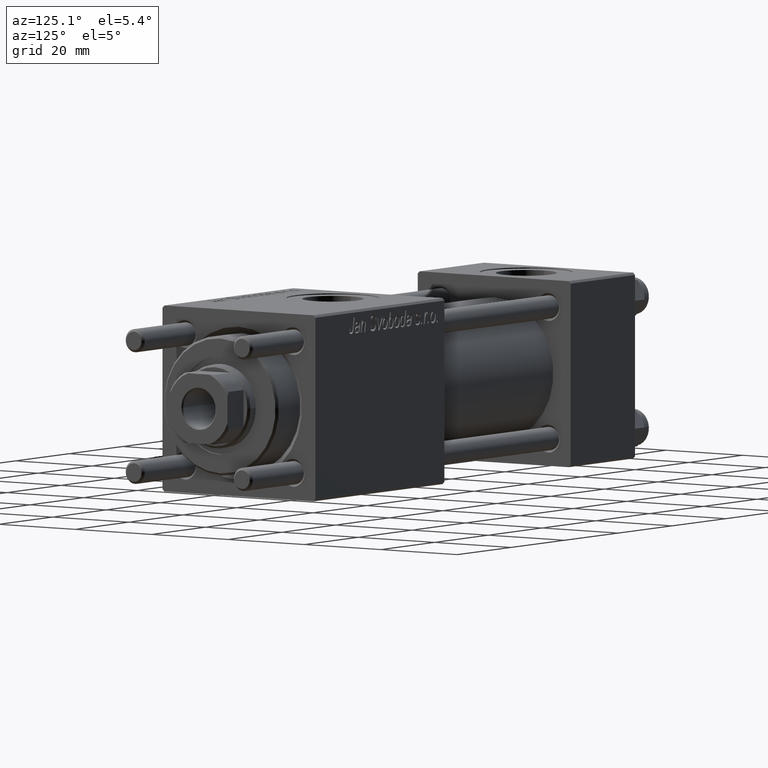
[diagram: clean part render]
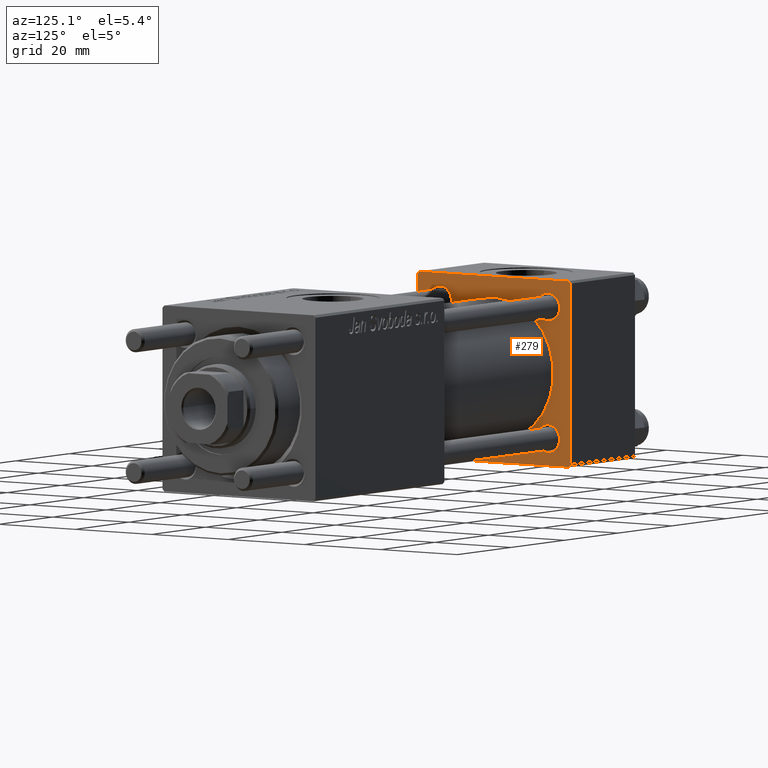
[diagram: same view with one face highlighted and labeled with its STEP entity id]
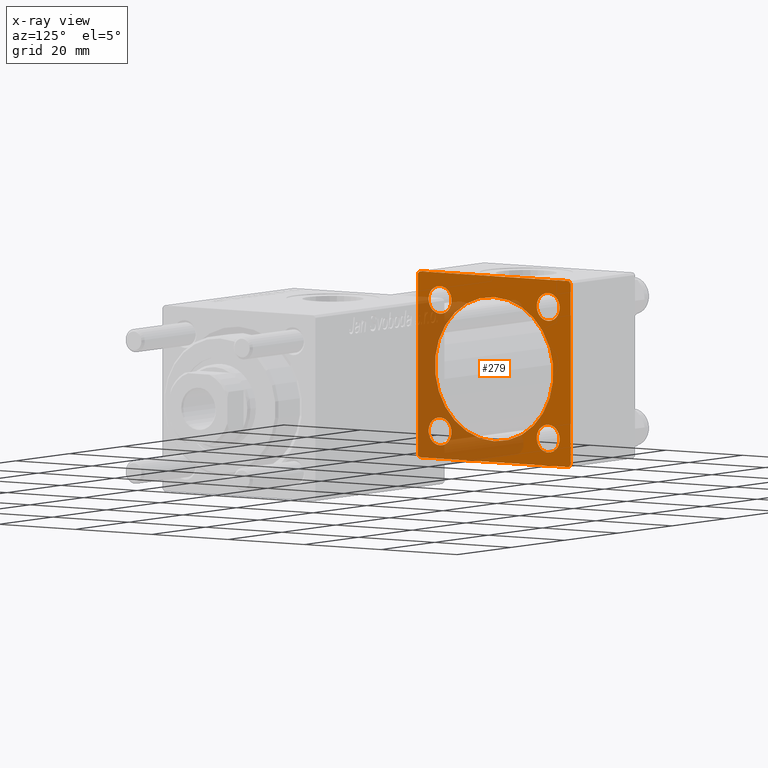
[diagram: x-ray of the same camera — body ghosted, the highlighted face saturated]
A machine part, auxiliary view. The second image highlights one B-rep face of the part: STEP entity #279.
The next image is the same camera in x-ray: the body ghosted, the highlighted face saturated — about 40% of this face is hidden behind the body in this view.
In plain terms, the highlighted planar face has unit normal (-1, 0, 0).
Its self-contained STEP definition (entity closure, byte-faithful):
#279 = ADVANCED_FACE ( 'NONE', ( #31303, #22696, #53356, #31575, #49057, #20663 ), #7751, .F. ) ;
#658 = EDGE_CURVE ( 'NONE', #17158, #51255, #43211, .T. ) ;
#666 = CARTESIAN_POINT ( 'NONE',  ( 24.00000000000000000, 20.00000000000000000, -19.50000000000002132 ) ) ;
#897 = CIRCLE ( 'NONE', #40274, 3.000000000000004441 ) ;
#1203 = AXIS2_PLACEMENT_3D ( 'NONE', #52461, #17475, #52743 ) ;
#1214 = LINE ( 'NONE', #27329, #26314 ) ;
#1460 = EDGE_LOOP ( 'NONE', ( #29319, #18227 ) ) ;
#1575 = VERTEX_POINT ( 'NONE', #15069 ) ;
#2359 = DIRECTION ( 'NONE',  ( 0.000000000000000000, 0.000000000000000000, 1.000000000000000000 ) ) ;
#2517 = LINE ( 'NONE', #24032, #32798 ) ;
#3300 = CARTESIAN_POINT ( 'NONE',  ( 24.00000000000000000, -2.602085213965210642E-15, 0.000000000000000000 ) ) ;
#3524 = EDGE_CURVE ( 'NONE', #46925, #26135, #39948, .T. ) ;
#3585 = EDGE_CURVE ( 'NONE', #5692, #17158, #1214, .T. ) ;
#3647 = VERTEX_POINT ( 'NONE', #12103 ) ;
#4442 = CIRCLE ( 'NONE', #31012, 15.50000000000000000 ) ;
#4713 = ORIENTED_EDGE ( 'NONE', *, *, #12176, .F. ) ;
#5247 = DIRECTION ( 'NONE',  ( 0.000000000000000000, -1.000000000000000000, -2.602085213965210149E-16 ) ) ;
#5669 = AXIS2_PLACEMENT_3D ( 'NONE', #26399, #25561, #55654 ) ;
#5692 = VERTEX_POINT ( 'NONE', #19074 ) ;
#6244 = DIRECTION ( 'NONE',  ( 0.000000000000000000, 0.7071067811865401342, -0.7071067811865549002 ) ) ;
#6413 = EDGE_CURVE ( 'NONE', #11225, #28555, #2517, .T. ) ;
#6633 = VERTEX_POINT ( 'NONE', #13602 ) ;
#6753 = ORIENTED_EDGE ( 'NONE', *, *, #21818, .T. ) ;
#7118 = DIRECTION ( 'NONE',  ( 1.000000000000000000, 0.000000000000000000, 0.000000000000000000 ) ) ;
#7376 = ORIENTED_EDGE ( 'NONE', *, *, #33749, .T. ) ;
#7613 = CIRCLE ( 'NONE', #1203, 2.999999999999973355 ) ;
#7751 = PLANE ( 'NONE',  #44457 ) ;
#8360 = AXIS2_PLACEMENT_3D ( 'NONE', #42965, #20911, #38399 ) ;
#8786 = LINE ( 'NONE', #9075, #14878 ) ;
#9075 = CARTESIAN_POINT ( 'NONE',  ( 24.00000000000000000, 20.00000000000000000, -20.00000000000000711 ) ) ;
#9976 = EDGE_CURVE ( 'NONE', #27657, #26135, #41867, .T. ) ;
#10024 = EDGE_CURVE ( 'NONE', #27657, #5692, #37582, .T. ) ;
#10230 = CIRCLE ( 'NONE', #42293, 3.000000000000004441 ) ;
#11217 = CIRCLE ( 'NONE', #13030, 3.000000000000004441 ) ;
#11225 = VERTEX_POINT ( 'NONE', #55246 ) ;
#11572 = VECTOR ( 'NONE', #21440, 1000.000000000000114 ) ;
#12055 = CARTESIAN_POINT ( 'NONE',  ( 24.00000000000000000, 19.50000000000000000, 20.00000000000000000 ) ) ;
#12103 = CARTESIAN_POINT ( 'NONE',  ( 24.00000000000000000, 14.14999999999999858, 11.15000000000002700 ) ) ;
#12176 = EDGE_CURVE ( 'NONE', #1575, #6633, #4442, .T. ) ;
#12602 = CARTESIAN_POINT ( 'NONE',  ( 24.00000000000000000, -14.14999999999999503, 14.15000000000000391 ) ) ;
#13030 = AXIS2_PLACEMENT_3D ( 'NONE', #19815, #36740, #50490 ) ;
#13203 = CARTESIAN_POINT ( 'NONE',  ( 24.00000000000000000, -19.49999999999999289, 19.99999999999998934 ) ) ;
#13432 = VERTEX_POINT ( 'NONE', #20325 ) ;
#13602 = CARTESIAN_POINT ( 'NONE',  ( 24.00000000000000000, -7.038826752868131828E-16, -15.50000000000000000 ) ) ;
#13807 = CIRCLE ( 'NONE', #17444, 3.000000000000004441 ) ;
#14322 = LINE ( 'NONE', #45272, #30587 ) ;
#14659 = CARTESIAN_POINT ( 'NONE',  ( 24.00000000000000000, -14.14999999999999503, -11.15000000000000036 ) ) ;
#14878 = VECTOR ( 'NONE', #31700, 1000.000000000000000 ) ;
#14977 = EDGE_LOOP ( 'NONE', ( #37511, #50495 ) ) ;
#15069 = CARTESIAN_POINT ( 'NONE',  ( 24.00000000000000000, -2.602085213965210642E-15, 15.50000000000000000 ) ) ;
#15797 = CIRCLE ( 'NONE', #5669, 2.999999999999973355 ) ;
#15846 = EDGE_CURVE ( 'NONE', #6633, #1575, #21935, .T. ) ;
#15937 = VERTEX_POINT ( 'NONE', #31731 ) ;
#16068 = DIRECTION ( 'NONE',  ( -0.000000000000000000, 0.000000000000000000, 1.000000000000000000 ) ) ;
#16231 = VERTEX_POINT ( 'NONE', #42532 ) ;
#16837 = EDGE_CURVE ( 'NONE', #13432, #56740, #897, .T. ) ;
#17158 = VERTEX_POINT ( 'NONE', #13203 ) ;
#17444 = AXIS2_PLACEMENT_3D ( 'NONE', #55115, #41634, #2359 ) ;
#17475 = DIRECTION ( 'NONE',  ( -1.000000000000000000, -0.000000000000000000, -0.000000000000000000 ) ) ;
#18117 = ORIENTED_EDGE ( 'NONE', *, *, #6413, .T. ) ;
#18227 = ORIENTED_EDGE ( 'NONE', *, *, #20025, .T. ) ;
#19074 = CARTESIAN_POINT ( 'NONE',  ( 24.00000000000000000, 19.50000000000000000, 20.00000000000000000 ) ) ;
#19476 = DIRECTION ( 'NONE',  ( 0.000000000000000000, 8.673617379884036705E-17, -1.000000000000000000 ) ) ;
#19815 = CARTESIAN_POINT ( 'NONE',  ( 24.00000000000000000, -14.14999999999999503, -14.15000000000000391 ) ) ;
#20025 = EDGE_CURVE ( 'NONE', #21540, #16231, #13807, .T. ) ;
#20325 = CARTESIAN_POINT ( 'NONE',  ( 24.00000000000000000, -14.14999999999999503, 11.15000000000000036 ) ) ;
#20474 = DIRECTION ( 'NONE',  ( -1.000000000000000000, -0.000000000000000000, -0.000000000000000000 ) ) ;
#20651 = DIRECTION ( 'NONE',  ( -1.000000000000000000, -0.000000000000000000, -0.000000000000000000 ) ) ;
#20663 = FACE_OUTER_BOUND ( 'NONE', #43831, .T. ) ;
#20911 = DIRECTION ( 'NONE',  ( -1.000000000000000000, -0.000000000000000000, -0.000000000000000000 ) ) ;
#21440 = DIRECTION ( 'NONE',  ( -0.000000000000000000, -0.7071067811865500152, -0.7071067811865451302 ) ) ;
#21459 = ORIENTED_EDGE ( 'NONE', *, *, #31473, .F. ) ;
#21522 = ORIENTED_EDGE ( 'NONE', *, *, #9976, .F. ) ;
#21540 = VERTEX_POINT ( 'NONE', #14659 ) ;
#21818 = EDGE_CURVE ( 'NONE', #47689, #48486, #38577, .T. ) ;
#21935 = CIRCLE ( 'NONE', #40238, 15.50000000000000000 ) ;
#22696 = FACE_BOUND ( 'NONE', #50992, .T. ) ;
#23343 = EDGE_CURVE ( 'NONE', #56740, #13432, #10230, .T. ) ;
#23903 = CARTESIAN_POINT ( 'NONE',  ( 24.00000000000000000, -19.50000000000000711, -20.00000000000000000 ) ) ;
#24032 = CARTESIAN_POINT ( 'NONE',  ( 24.00000000000000000, -19.50000000000000711, -20.00000000000000000 ) ) ;
#24966 = DIRECTION ( 'NONE',  ( 0.000000000000000000, 0.000000000000000000, 1.000000000000000000 ) ) ;
#24976 = DIRECTION ( 'NONE',  ( 0.000000000000000000, -0.7071067811865425767, 0.7071067811865525687 ) ) ;
#25456 = VECTOR ( 'NONE', #55912, 1000.000000000000000 ) ;
#25485 = DIRECTION ( 'NONE',  ( 0.000000000000000000, 0.000000000000000000, 1.000000000000000000 ) ) ;
#25561 = DIRECTION ( 'NONE',  ( -1.000000000000000000, -0.000000000000000000, -0.000000000000000000 ) ) ;
#26026 = CARTESIAN_POINT ( 'NONE',  ( 24.00000000000000000, -20.00000000000000355, 19.49999999999998224 ) ) ;
#26135 = VERTEX_POINT ( 'NONE', #49355 ) ;
#26314 = VECTOR ( 'NONE', #5247, 1000.000000000000000 ) ;
#26399 = CARTESIAN_POINT ( 'NONE',  ( 24.00000000000000000, 14.14999999999999858, 14.15000000000000036 ) ) ;
#26477 = DIRECTION ( 'NONE',  ( -1.000000000000000000, -0.000000000000000000, -0.000000000000000000 ) ) ;
#27329 = CARTESIAN_POINT ( 'NONE',  ( 24.00000000000000000, 20.00000000000000000, 20.00000000000000000 ) ) ;
#27657 = VERTEX_POINT ( 'NONE', #43519 ) ;
#28555 = VERTEX_POINT ( 'NONE', #23903 ) ;
#29319 = ORIENTED_EDGE ( 'NONE', *, *, #29590, .T. ) ;
#29590 = EDGE_CURVE ( 'NONE', #16231, #21540, #11217, .T. ) ;
#29646 = CARTESIAN_POINT ( 'NONE',  ( 24.00000000000000000, 14.14999999999999858, -14.15000000000000036 ) ) ;
#29723 = EDGE_CURVE ( 'NONE', #3647, #15937, #15797, .T. ) ;
#30587 = VECTOR ( 'NONE', #19476, 1000.000000000000000 ) ;
#31012 = AXIS2_PLACEMENT_3D ( 'NONE', #3300, #34548, #46876 ) ;
#31303 = FACE_BOUND ( 'NONE', #1460, .T. ) ;
#31473 = EDGE_CURVE ( 'NONE', #46925, #28555, #8786, .T. ) ;
#31575 = FACE_BOUND ( 'NONE', #43508, .T. ) ;
#31700 = DIRECTION ( 'NONE',  ( 0.000000000000000000, -1.000000000000000000, 1.734723475976807094E-16 ) ) ;
#31731 = CARTESIAN_POINT ( 'NONE',  ( 24.00000000000000000, 14.14999999999999858, 17.14999999999997726 ) ) ;
#32367 = AXIS2_PLACEMENT_3D ( 'NONE', #29646, #26477, #35071 ) ;
#32798 = VECTOR ( 'NONE', #6244, 1000.000000000000000 ) ;
#33460 = CARTESIAN_POINT ( 'NONE',  ( 24.00000000000000000, 19.50000000000000711, -20.00000000000000711 ) ) ;
#33749 = EDGE_CURVE ( 'NONE', #48486, #47689, #56200, .T. ) ;
#34548 = DIRECTION ( 'NONE',  ( 1.000000000000000000, 0.000000000000000000, 0.000000000000000000 ) ) ;
#35071 = DIRECTION ( 'NONE',  ( 0.000000000000000000, 0.000000000000000000, 1.000000000000000000 ) ) ;
#36740 = DIRECTION ( 'NONE',  ( -1.000000000000000000, -0.000000000000000000, -0.000000000000000000 ) ) ;
#37511 = ORIENTED_EDGE ( 'NONE', *, *, #16837, .T. ) ;
#37582 = LINE ( 'NONE', #12055, #46468 ) ;
#37851 = CARTESIAN_POINT ( 'NONE',  ( 24.00000000000000000, 14.14999999999999858, -17.14999999999997726 ) ) ;
#38151 = CARTESIAN_POINT ( 'NONE',  ( 24.00000000000000000, 0.000000000000000000, 0.000000000000000000 ) ) ;
#38399 = DIRECTION ( 'NONE',  ( 0.000000000000000000, 0.000000000000000000, 1.000000000000000000 ) ) ;
#38460 = EDGE_CURVE ( 'NONE', #15937, #3647, #7613, .T. ) ;
#38577 = CIRCLE ( 'NONE', #8360, 2.999999999999976463 ) ;
#39948 = LINE ( 'NONE', #666, #41883 ) ;
#40104 = EDGE_CURVE ( 'NONE', #51255, #11225, #14322, .T. ) ;
#40238 = AXIS2_PLACEMENT_3D ( 'NONE', #46398, #7118, #25485 ) ;
#40274 = AXIS2_PLACEMENT_3D ( 'NONE', #41677, #20474, #51152 ) ;
#40377 = ORIENTED_EDGE ( 'NONE', *, *, #3585, .T. ) ;
#41634 = DIRECTION ( 'NONE',  ( -1.000000000000000000, -0.000000000000000000, -0.000000000000000000 ) ) ;
#41656 = ORIENTED_EDGE ( 'NONE', *, *, #658, .T. ) ;
#41677 = CARTESIAN_POINT ( 'NONE',  ( 24.00000000000000000, -14.14999999999999503, 14.15000000000000391 ) ) ;
#41867 = LINE ( 'NONE', #42718, #25456 ) ;
#41883 = VECTOR ( 'NONE', #51736, 1000.000000000000000 ) ;
#42293 = AXIS2_PLACEMENT_3D ( 'NONE', #12602, #20651, #24966 ) ;
#42532 = CARTESIAN_POINT ( 'NONE',  ( 24.00000000000000000, -14.14999999999999503, -17.15000000000000924 ) ) ;
#42718 = CARTESIAN_POINT ( 'NONE',  ( 24.00000000000000000, 20.00000000000000000, 20.00000000000000000 ) ) ;
#42738 = ORIENTED_EDGE ( 'NONE', *, *, #3524, .T. ) ;
#42965 = CARTESIAN_POINT ( 'NONE',  ( 24.00000000000000000, 14.14999999999999858, -14.15000000000000036 ) ) ;
#42992 = CARTESIAN_POINT ( 'NONE',  ( 24.00000000000000000, 14.14999999999999858, -11.15000000000002700 ) ) ;
#43211 = LINE ( 'NONE', #26026, #11572 ) ;
#43508 = EDGE_LOOP ( 'NONE', ( #53067, #46063 ) ) ;
#43519 = CARTESIAN_POINT ( 'NONE',  ( 24.00000000000000000, 20.00000000000000000, 19.49999999999999289 ) ) ;
#43831 = EDGE_LOOP ( 'NONE', ( #21459, #42738, #21522, #51193, #40377, #41656, #53823, #18117 ) ) ;
#44275 = CARTESIAN_POINT ( 'NONE',  ( 24.00000000000000000, -14.14999999999999503, 17.15000000000000924 ) ) ;
#44457 = AXIS2_PLACEMENT_3D ( 'NONE', #38151, #46170, #16068 ) ;
#45272 = CARTESIAN_POINT ( 'NONE',  ( 24.00000000000000000, -20.00000000000000355, 19.99999999999998934 ) ) ;
#46063 = ORIENTED_EDGE ( 'NONE', *, *, #38460, .T. ) ;
#46170 = DIRECTION ( 'NONE',  ( -1.000000000000000000, 0.000000000000000000, -0.000000000000000000 ) ) ;
#46398 = CARTESIAN_POINT ( 'NONE',  ( 24.00000000000000000, -2.602085213965210642E-15, 0.000000000000000000 ) ) ;
#46468 = VECTOR ( 'NONE', #24976, 999.9999999999998863 ) ;
#46876 = DIRECTION ( 'NONE',  ( 0.000000000000000000, 0.000000000000000000, 1.000000000000000000 ) ) ;
#46925 = VERTEX_POINT ( 'NONE', #33460 ) ;
#47689 = VERTEX_POINT ( 'NONE', #37851 ) ;
#48486 = VERTEX_POINT ( 'NONE', #42992 ) ;
#49057 = FACE_BOUND ( 'NONE', #52197, .T. ) ;
#49355 = CARTESIAN_POINT ( 'NONE',  ( 24.00000000000000000, 20.00000000000000000, -19.50000000000002132 ) ) ;
#50489 = ORIENTED_EDGE ( 'NONE', *, *, #15846, .F. ) ;
#50490 = DIRECTION ( 'NONE',  ( 0.000000000000000000, 0.000000000000000000, 1.000000000000000000 ) ) ;
#50495 = ORIENTED_EDGE ( 'NONE', *, *, #23343, .T. ) ;
#50992 = EDGE_LOOP ( 'NONE', ( #6753, #7376 ) ) ;
#51152 = DIRECTION ( 'NONE',  ( 0.000000000000000000, 0.000000000000000000, 1.000000000000000000 ) ) ;
#51193 = ORIENTED_EDGE ( 'NONE', *, *, #10024, .T. ) ;
#51255 = VERTEX_POINT ( 'NONE', #56409 ) ;
#51736 = DIRECTION ( 'NONE',  ( -0.000000000000000000, 0.7071067811865524577, 0.7071067811865426878 ) ) ;
#52197 = EDGE_LOOP ( 'NONE', ( #4713, #50489 ) ) ;
#52461 = CARTESIAN_POINT ( 'NONE',  ( 24.00000000000000000, 14.14999999999999858, 14.15000000000000036 ) ) ;
#52743 = DIRECTION ( 'NONE',  ( 0.000000000000000000, 0.000000000000000000, 1.000000000000000000 ) ) ;
#53067 = ORIENTED_EDGE ( 'NONE', *, *, #29723, .T. ) ;
#53356 = FACE_BOUND ( 'NONE', #14977, .T. ) ;
#53823 = ORIENTED_EDGE ( 'NONE', *, *, #40104, .T. ) ;
#55115 = CARTESIAN_POINT ( 'NONE',  ( 24.00000000000000000, -14.14999999999999503, -14.15000000000000391 ) ) ;
#55246 = CARTESIAN_POINT ( 'NONE',  ( 24.00000000000000000, -20.00000000000000000, -19.49999999999999645 ) ) ;
#55654 = DIRECTION ( 'NONE',  ( 0.000000000000000000, 0.000000000000000000, 1.000000000000000000 ) ) ;
#55912 = DIRECTION ( 'NONE',  ( 0.000000000000000000, 0.000000000000000000, -1.000000000000000000 ) ) ;
#56200 = CIRCLE ( 'NONE', #32367, 2.999999999999976463 ) ;
#56409 = CARTESIAN_POINT ( 'NONE',  ( 24.00000000000000000, -20.00000000000000355, 19.49999999999998224 ) ) ;
#56740 = VERTEX_POINT ( 'NONE', #44275 ) ;